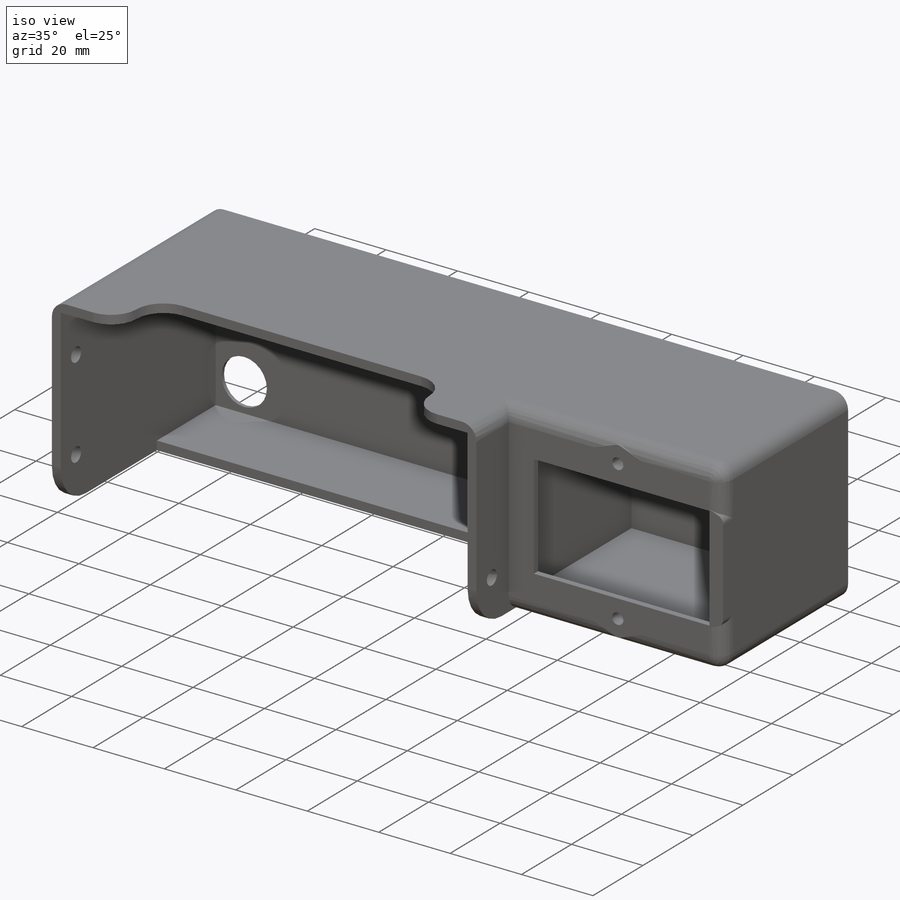
[diagram: iso view]
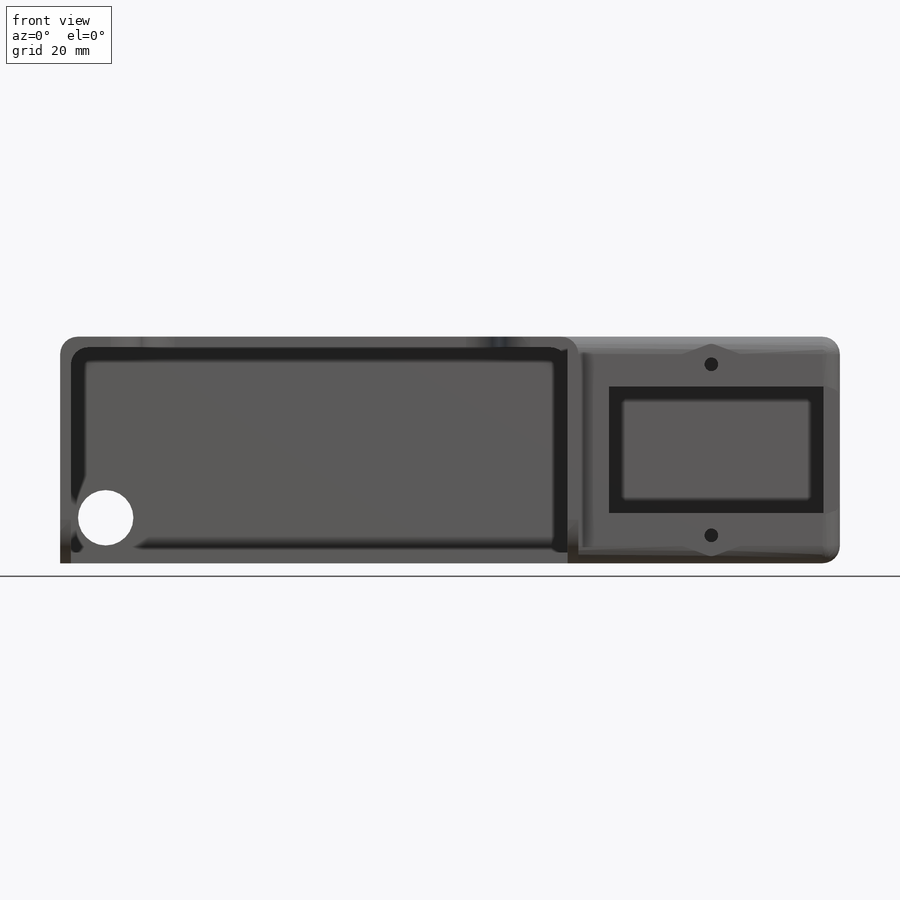
[diagram: front view]
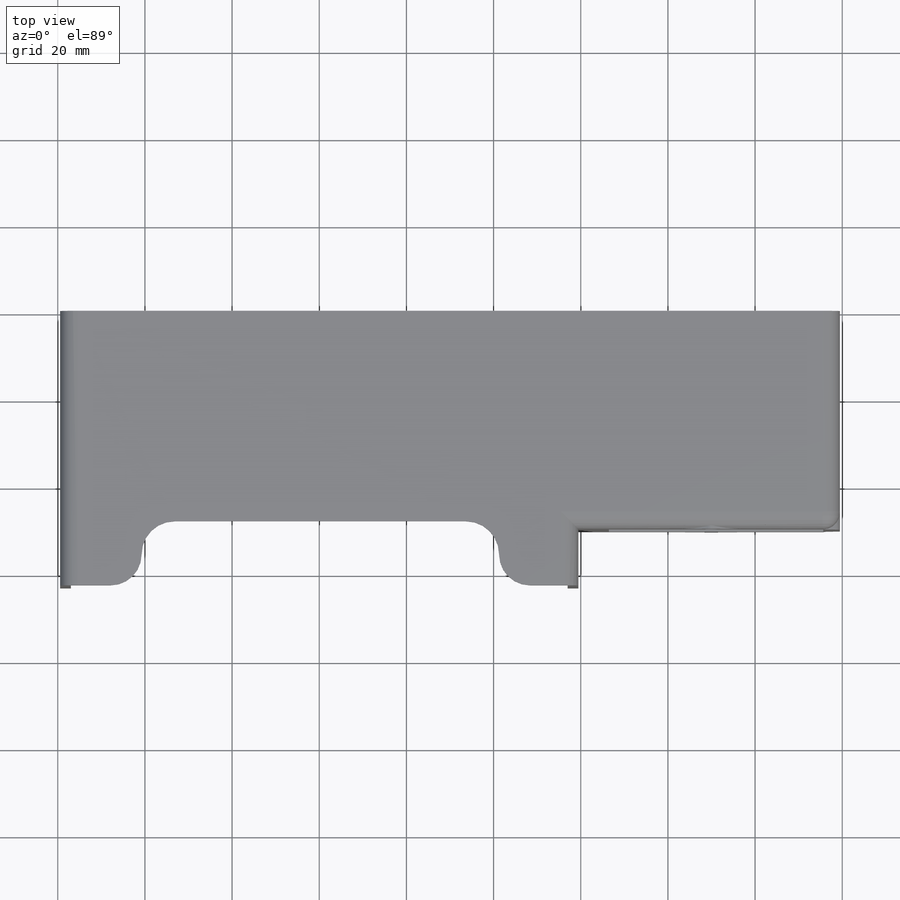
[diagram: top view]
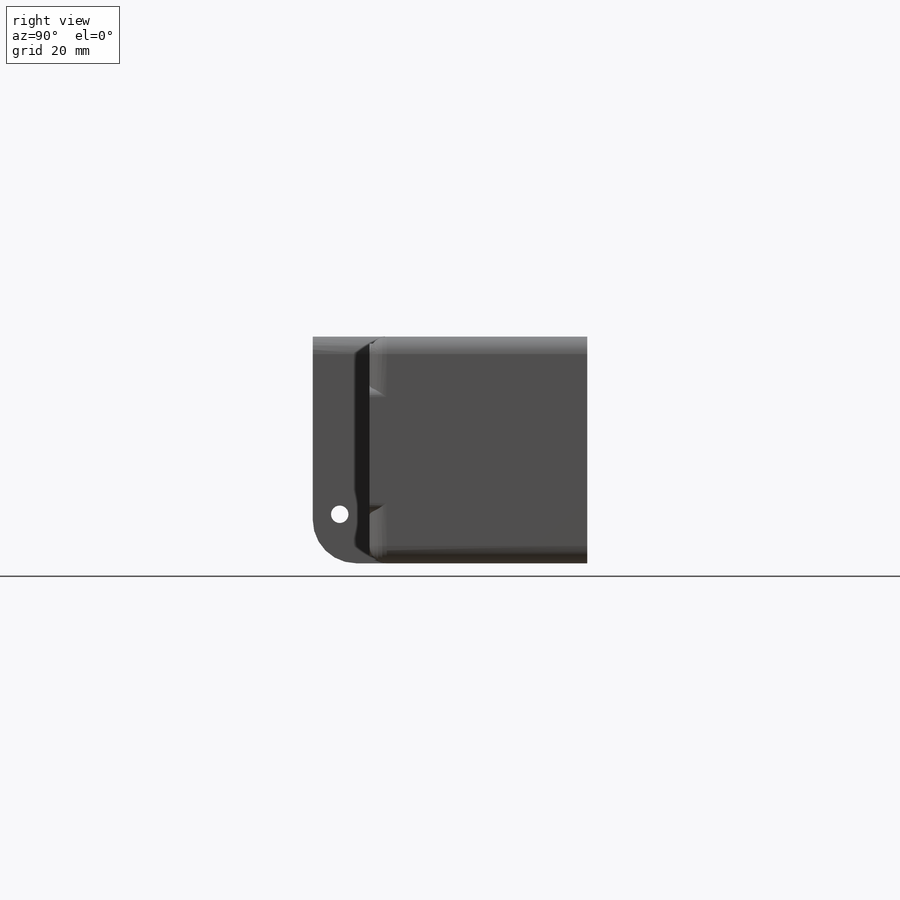
[diagram: right view]
SOLIDWORKS PART (.sldprt)
format: sldprt  version: not decoded by parser v0  size: 614,912 bytes
history: native  units: mm
features: sketch x16, cut_extrude x10, fillet x6, extrude x5, chamfer x3, material x1 (+11 scaffold rows collapsed)
feature tree (52):
  scaffold x11  (default folders/planes/origin — collapsed)
  material  "Material <not specified>"
  sketch  "Sketch1"  dims[D1=52.0mm]
  extrude  "Boss-Extrude1"  Depth=56mm
  sketch  "Sketch2"  dims[D1=2.45mm]
  cut_extrude  "Cut-Extrude1"  Depth=1mm
  sketch  "Sketch4"
  cut_extrude  "Cut-Extrude3"  Depth=31.5mm
  fillet  "Fillet6"  Radius=4mm
  sketch  "Sketch20"  dims[D1=0.0mm]
  extrude  "Boss-Extrude10"  Depth=7mm
  sketch  "Sketch21"
  cut_extrude  "Cut-Extrude10"  [1 undecoded]
  sketch  "Sketch24"  dims[c1.D1=4.0mm c1.D2=4.0mm c1.D3=4.0mm c2.D1=6.2mm c2.D2=11.25mm]
  sketch  "Sketch25"  dims[c1.D1=4.0mm c1.D2=4.0mm c1.D3=4.0mm c1.D4=4.0mm c1.D5=4.0mm c1.D6=4.0mm c2.D1=11.25mm c2.D2=36.55mm c2.D3=6.2mm c2.D4=6.2mm]
  sketch  "Sketch26"  dims[D1=6.0mm]
  sketch  "Sketch28"  dims[c1.D1=12.0mm c1.D2=12.0mm c1.D3=6.0mm c2.D1=8.0mm c2.D2=8.0mm]
  cut_extrude  "Cut-Extrude13"  Depth=3mm
  cut_extrude  "Cut-Extrude14"  Depth=3mm
  cut_extrude  "Cut-Extrude15"  Depth=3mm
  fillet  "Fillet11"  Radius=10mm
  cut_extrude  "Cut-Extrude16"  Depth=3mm
  sketch  "Sketch29"
  sketch  "Sketch30"  dims[D1=0.0mm D2=0.0mm]
  extrude  "Boss-Extrude11"  Depth=50mm
  sketch  "Sketch31"  dims[D1=0.0mm D2=2.45mm]
  cut_extrude  "Cut-Extrude17"  Depth=1mm
  sketch  "Sketch32"  dims[D1=10.0mm D2=7.5mm D3=7.5mm]
  cut_extrude  "Cut-Extrude18"  [1 undecoded]
  fillet  "Fillet12"  Radius=5mm
  sketch  "Sketch33"  dims[D1=1.0mm]
  extrude  "Boss-Extrude12"  Depth=1.6mm
  chamfer  "Chamfer3"  Distance=7mm Angle=45deg
  chamfer  "Chamfer4"  Distance=9.05mm Angle=45deg
  chamfer  "Chamfer5"  Distance=1.35mm Angle=45deg
  sketch  "Sketch34"  dims[D1=1.75mm]
  cut_extrude  "Cut-Extrude19"  Depth=20mm
  fillet  "Fillet13"  Radius=4mm
  fillet  "Fillet14"  Radius=4mm
  fillet  "Fillet15"  Radius=4mm
  sketch  "Sketch35"  dims[D1=0.0mm D2=0.0mm D3=0.0mm D4=0.0mm]
  extrude  "Boss-Extrude13"  Depth=20mm
decode coverage: 35 of 40 modeling features carry decoded parameters
note: 2 parameter values undecoded
note: suppression state not decoded; provenance and decode notes live in map.json
